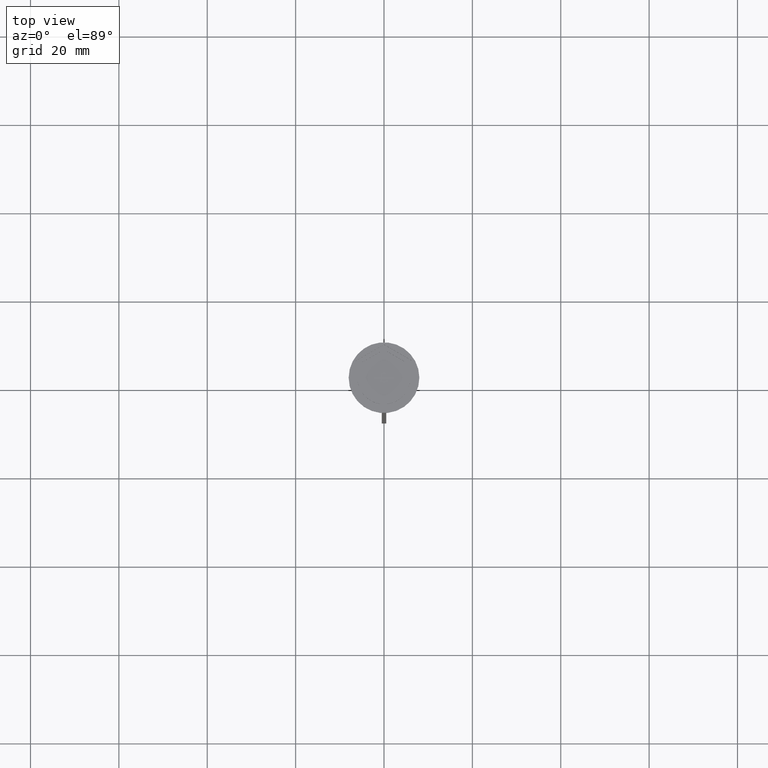
[diagram: clean part render]
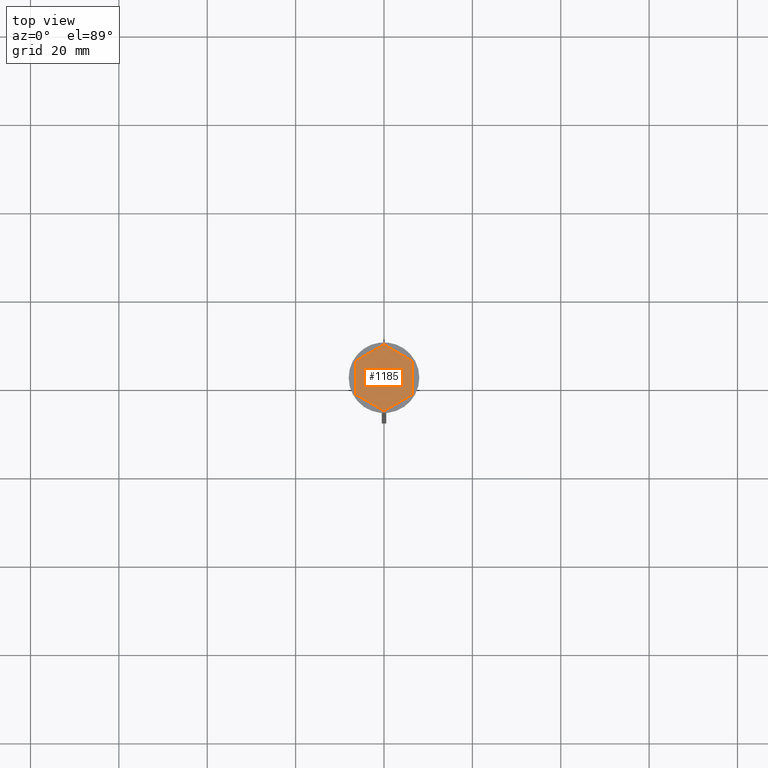
[diagram: same view with one face highlighted and labeled with its STEP entity id]
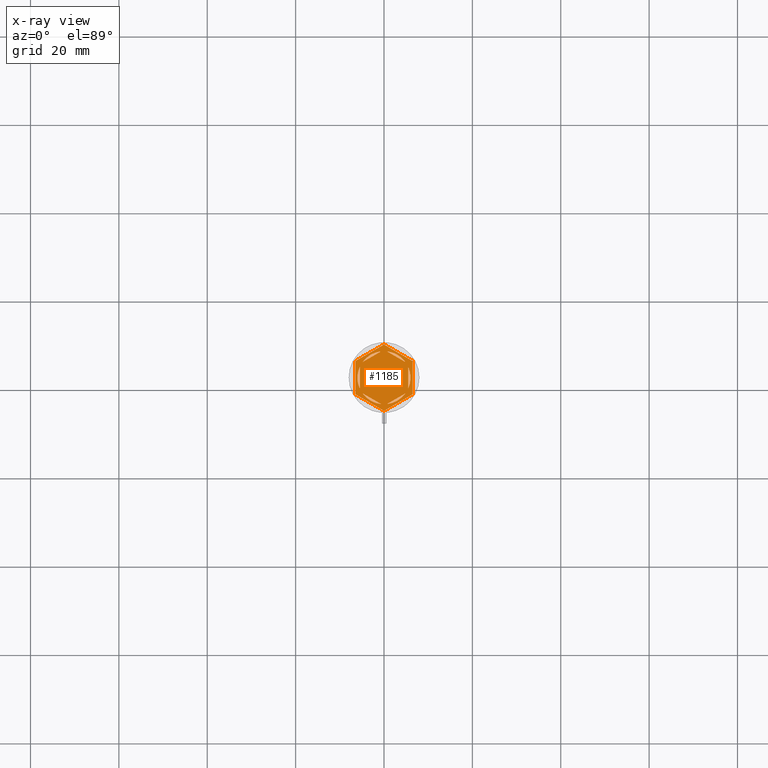
[diagram: x-ray of the same camera — body ghosted, the highlighted face saturated]
A machine part, top view. The second image highlights one B-rep face of the part: STEP entity #1185.
The next image is the same camera in x-ray: the body ghosted, the highlighted face saturated — about 0% of this face is hidden behind the body in this view.
In plain terms, the highlighted planar face has unit normal (0, 0, 1).
Its self-contained STEP definition (entity closure, byte-faithful):
#1 = VECTOR ( 'NONE', #839, 1000.000000000000114 ) ;
#19 = DIRECTION ( 'NONE',  ( 0.8660254037844387076, -0.4999999999999997224, 0.000000000000000000 ) ) ;
#32 = VECTOR ( 'NONE', #436, 1000.000000000000000 ) ;
#35 = LINE ( 'NONE', #2354, #1 ) ;
#39 = LINE ( 'NONE', #2085, #787 ) ;
#80 = CARTESIAN_POINT ( 'NONE',  ( 5.500000000000000000, -2.397915761656362665, -1.000000000000000888 ) ) ;
#83 = EDGE_CURVE ( 'NONE', #713, #2049, #89, .T. ) ;
#89 = LINE ( 'NONE', #869, #2003 ) ;
#115 = VERTEX_POINT ( 'NONE', #1660 ) ;
#126 = VERTEX_POINT ( 'NONE', #720 ) ;
#133 = CIRCLE ( 'NONE', #1177, 6.000000000000000888 ) ;
#160 = CARTESIAN_POINT ( 'NONE',  ( 6.500000000000000888, 3.752776749732567918, -1.000000000000000000 ) ) ;
#175 = VECTOR ( 'NONE', #446, 1000.000000000000114 ) ;
#183 = VERTEX_POINT ( 'NONE', #2029 ) ;
#230 = ORIENTED_EDGE ( 'NONE', *, *, #883, .F. ) ;
#236 = EDGE_CURVE ( 'NONE', #805, #2097, #874, .T. ) ;
#247 = CARTESIAN_POINT ( 'NONE',  ( -6.000000000000000888, 0.000000000000000000, -1.000000000000000000 ) ) ;
#250 = EDGE_CURVE ( 'NONE', #2097, #805, #930, .T. ) ;
#280 = DIRECTION ( 'NONE',  ( 1.000000000000000000, 0.000000000000000000, 0.000000000000000000 ) ) ;
#282 = VECTOR ( 'NONE', #2390, 1000.000000000000000 ) ;
#327 = AXIS2_PLACEMENT_3D ( 'NONE', #1127, #1360, #1705 ) ;
#350 = DIRECTION ( 'NONE',  ( 1.000000000000000000, 0.000000000000000000, 0.000000000000000000 ) ) ;
#358 = CARTESIAN_POINT ( 'NONE',  ( -5.500000000000001776, 2.397915761656359113, -1.000000000000000888 ) ) ;
#383 = DIRECTION ( 'NONE',  ( 1.000000000000000000, 0.000000000000000000, -0.000000000000000000 ) ) ;
#436 = DIRECTION ( 'NONE',  ( 0.000000000000000000, 1.000000000000000000, 0.000000000000000000 ) ) ;
#446 = DIRECTION ( 'NONE',  ( -0.8660254037844387076, -0.4999999999999997224, 0.000000000000000000 ) ) ;
#469 = CARTESIAN_POINT ( 'NONE',  ( 0.000000000000000000, 7.505553499465133171, -1.000000000000000000 ) ) ;
#497 = EDGE_CURVE ( 'NONE', #1172, #1855, #2355, .T. ) ;
#519 = FACE_OUTER_BOUND ( 'NONE', #962, .T. ) ;
#523 = CARTESIAN_POINT ( 'NONE',  ( 0.000000000000000000, 0.000000000000000000, -1.000000000000000000 ) ) ;
#529 = EDGE_CURVE ( 'NONE', #115, #126, #854, .T. ) ;
#533 = CARTESIAN_POINT ( 'NONE',  ( 4.826655965729517384, 3.564181839986237499, -1.000000000000000888 ) ) ;
#541 = ORIENTED_EDGE ( 'NONE', *, *, #529, .T. ) ;
#598 = ORIENTED_EDGE ( 'NONE', *, *, #1474, .F. ) ;
#619 = CARTESIAN_POINT ( 'NONE',  ( -0.6733440342704850590, -5.962097601642593503, -1.000000000000000888 ) ) ;
#626 = CARTESIAN_POINT ( 'NONE',  ( 4.826655965729520048, -3.564181839986233946, -1.000000000000000888 ) ) ;
#677 = DIRECTION ( 'NONE',  ( 1.000000000000000000, 0.000000000000000000, 0.000000000000000000 ) ) ;
#679 = ORIENTED_EDGE ( 'NONE', *, *, #1438, .T. ) ;
#687 = EDGE_LOOP ( 'NONE', ( #1276, #230 ) ) ;
#711 = AXIS2_PLACEMENT_3D ( 'NONE', #1494, #1908, #350 ) ;
#713 = VERTEX_POINT ( 'NONE', #978 ) ;
#720 = CARTESIAN_POINT ( 'NONE',  ( 6.499999999999999112, -3.752776749732567030, -1.000000000000000000 ) ) ;
#751 = EDGE_CURVE ( 'NONE', #183, #1726, #1988, .T. ) ;
#760 = DIRECTION ( 'NONE',  ( 0.000000000000000000, 0.000000000000000000, 1.000000000000000000 ) ) ;
#785 = EDGE_CURVE ( 'NONE', #969, #1089, #2475, .T. ) ;
#787 = VECTOR ( 'NONE', #2109, 1000.000000000000000 ) ;
#805 = VERTEX_POINT ( 'NONE', #2276 ) ;
#812 = CARTESIAN_POINT ( 'NONE',  ( -6.500000000000000888, 3.752776749732564365, -1.000000000000000000 ) ) ;
#825 = LINE ( 'NONE', #812, #282 ) ;
#839 = DIRECTION ( 'NONE',  ( 0.8660254037844387076, -0.4999999999999997224, 0.000000000000000000 ) ) ;
#854 = LINE ( 'NONE', #1398, #2205 ) ;
#869 = CARTESIAN_POINT ( 'NONE',  ( 4.336808689942017736E-16, 6.350852961085885262, -1.000000000000000888 ) ) ;
#872 = LINE ( 'NONE', #2211, #2235 ) ;
#874 = CIRCLE ( 'NONE', #2442, 6.000000000000000888 ) ;
#883 = EDGE_CURVE ( 'NONE', #1726, #183, #2163, .T. ) ;
#921 = DIRECTION ( 'NONE',  ( -2.731481088613015255E-16, -1.000000000000000000, 0.000000000000000000 ) ) ;
#930 = LINE ( 'NONE', #1081, #1592 ) ;
#950 = DIRECTION ( 'NONE',  ( 0.000000000000000000, 0.000000000000000000, 1.000000000000000000 ) ) ;
#962 = EDGE_LOOP ( 'NONE', ( #1849, #679, #1786, #2233, #541, #2388 ) ) ;
#965 = DIRECTION ( 'NONE',  ( -0.8660254037844387076, 0.4999999999999997224, 0.000000000000000000 ) ) ;
#969 = VERTEX_POINT ( 'NONE', #1044 ) ;
#975 = FACE_BOUND ( 'NONE', #1747, .T. ) ;
#978 = CARTESIAN_POINT ( 'NONE',  ( -4.826655965729520048, 3.564181839986233946, -1.000000000000000888 ) ) ;
#991 = AXIS2_PLACEMENT_3D ( 'NONE', #2489, #760, #1525 ) ;
#1040 = ORIENTED_EDGE ( 'NONE', *, *, #1600, .F. ) ;
#1044 = CARTESIAN_POINT ( 'NONE',  ( 6.500000000000000888, 3.752776749732567918, -1.000000000000000000 ) ) ;
#1045 = CARTESIAN_POINT ( 'NONE',  ( 0.6733440342704825055, 5.962097601642593503, -1.000000000000000888 ) ) ;
#1081 = CARTESIAN_POINT ( 'NONE',  ( -5.500000000000001776, -3.175426480542941743, -1.000000000000000888 ) ) ;
#1082 = ORIENTED_EDGE ( 'NONE', *, *, #1446, .F. ) ;
#1084 = ORIENTED_EDGE ( 'NONE', *, *, #236, .F. ) ;
#1089 = VERTEX_POINT ( 'NONE', #469 ) ;
#1124 = FACE_BOUND ( 'NONE', #687, .T. ) ;
#1127 = CARTESIAN_POINT ( 'NONE',  ( 0.000000000000000000, 0.000000000000000000, -1.000000000000000000 ) ) ;
#1138 = FACE_BOUND ( 'NONE', #1619, .T. ) ;
#1143 = ORIENTED_EDGE ( 'NONE', *, *, #2329, .F. ) ;
#1172 = VERTEX_POINT ( 'NONE', #1718 ) ;
#1173 = EDGE_LOOP ( 'NONE', ( #1957, #2019 ) ) ;
#1177 = AXIS2_PLACEMENT_3D ( 'NONE', #2334, #2125, #2325 ) ;
#1185 = ADVANCED_FACE ( 'NONE', ( #1936, #975, #1124, #1922, #1138, #2491, #519 ), #2459, .T. ) ;
#1192 = VECTOR ( 'NONE', #921, 1000.000000000000000 ) ;
#1217 = ORIENTED_EDGE ( 'NONE', *, *, #497, .F. ) ;
#1248 = VERTEX_POINT ( 'NONE', #247 ) ;
#1263 = ORIENTED_EDGE ( 'NONE', *, *, #1905, .F. ) ;
#1276 = ORIENTED_EDGE ( 'NONE', *, *, #751, .F. ) ;
#1313 = ORIENTED_EDGE ( 'NONE', *, *, #83, .F. ) ;
#1339 = VERTEX_POINT ( 'NONE', #1557 ) ;
#1356 = EDGE_CURVE ( 'NONE', #2030, #1890, #1585, .T. ) ;
#1360 = DIRECTION ( 'NONE',  ( 0.000000000000000000, 0.000000000000000000, 1.000000000000000000 ) ) ;
#1382 = CARTESIAN_POINT ( 'NONE',  ( -5.500000000000001776, 3.175426480542942187, -1.000000000000000888 ) ) ;
#1396 = AXIS2_PLACEMENT_3D ( 'NONE', #1909, #950, #383 ) ;
#1398 = CARTESIAN_POINT ( 'NONE',  ( -4.280685092543093048E-16, -7.505553499465134060, -1.000000000000000000 ) ) ;
#1409 = CARTESIAN_POINT ( 'NONE',  ( -0.6733440342704829495, 5.962097601642593503, -1.000000000000000888 ) ) ;
#1414 = VERTEX_POINT ( 'NONE', #80 ) ;
#1438 = EDGE_CURVE ( 'NONE', #1089, #2168, #872, .T. ) ;
#1446 = EDGE_CURVE ( 'NONE', #2049, #713, #1710, .T. ) ;
#1474 = EDGE_CURVE ( 'NONE', #1248, #1172, #2395, .T. ) ;
#1493 = VECTOR ( 'NONE', #965, 1000.000000000000114 ) ;
#1494 = CARTESIAN_POINT ( 'NONE',  ( 0.000000000000000000, 0.000000000000000000, -1.000000000000000000 ) ) ;
#1525 = DIRECTION ( 'NONE',  ( 1.000000000000000000, 0.000000000000000000, 0.000000000000000000 ) ) ;
#1557 = CARTESIAN_POINT ( 'NONE',  ( -6.500000000000000888, -3.752776749732568806, -1.000000000000000000 ) ) ;
#1575 = ORIENTED_EDGE ( 'NONE', *, *, #250, .F. ) ;
#1585 = LINE ( 'NONE', #2335, #1874 ) ;
#1592 = VECTOR ( 'NONE', #1848, 999.9999999999998863 ) ;
#1600 = EDGE_CURVE ( 'NONE', #1709, #1414, #1689, .T. ) ;
#1611 = DIRECTION ( 'NONE',  ( 0.000000000000000000, 0.000000000000000000, 1.000000000000000000 ) ) ;
#1619 = EDGE_LOOP ( 'NONE', ( #1263, #1217, #598 ) ) ;
#1620 = DIRECTION ( 'NONE',  ( 0.8660254037844385966, 0.5000000000000001110, -0.000000000000000000 ) ) ;
#1660 = CARTESIAN_POINT ( 'NONE',  ( -4.280685092543093048E-16, -7.505553499465134060, -1.000000000000000000 ) ) ;
#1664 = CARTESIAN_POINT ( 'NONE',  ( 0.000000000000000000, 0.000000000000000000, -1.000000000000000000 ) ) ;
#1689 = LINE ( 'NONE', #1882, #1192 ) ;
#1705 = DIRECTION ( 'NONE',  ( 1.000000000000000000, 0.000000000000000000, 0.000000000000000000 ) ) ;
#1709 = VERTEX_POINT ( 'NONE', #1930 ) ;
#1710 = CIRCLE ( 'NONE', #2156, 6.000000000000000888 ) ;
#1718 = CARTESIAN_POINT ( 'NONE',  ( -5.500000000000001776, -2.397915761656359113, -1.000000000000000888 ) ) ;
#1726 = VERTEX_POINT ( 'NONE', #626 ) ;
#1747 = EDGE_LOOP ( 'NONE', ( #1143, #1040 ) ) ;
#1786 = ORIENTED_EDGE ( 'NONE', *, *, #2022, .T. ) ;
#1797 = CIRCLE ( 'NONE', #711, 6.000000000000000888 ) ;
#1848 = DIRECTION ( 'NONE',  ( -0.8660254037844385966, 0.5000000000000002220, 0.000000000000000000 ) ) ;
#1849 = ORIENTED_EDGE ( 'NONE', *, *, #785, .T. ) ;
#1855 = VERTEX_POINT ( 'NONE', #358 ) ;
#1868 = EDGE_CURVE ( 'NONE', #126, #969, #39, .T. ) ;
#1874 = VECTOR ( 'NONE', #19, 1000.000000000000114 ) ;
#1882 = CARTESIAN_POINT ( 'NONE',  ( 5.500000000000000000, -3.175426480542943519, -1.000000000000000888 ) ) ;
#1890 = VERTEX_POINT ( 'NONE', #533 ) ;
#1905 = EDGE_CURVE ( 'NONE', #1855, #1248, #1797, .T. ) ;
#1908 = DIRECTION ( 'NONE',  ( 0.000000000000000000, 0.000000000000000000, 1.000000000000000000 ) ) ;
#1909 = CARTESIAN_POINT ( 'NONE',  ( 0.000000000000000000, 0.000000000000000000, -1.000000000000000000 ) ) ;
#1922 = FACE_BOUND ( 'NONE', #2480, .T. ) ;
#1929 = EDGE_CURVE ( 'NONE', #1890, #2030, #2074, .T. ) ;
#1930 = CARTESIAN_POINT ( 'NONE',  ( 5.500000000000001776, 2.397915761656360001, -1.000000000000000888 ) ) ;
#1936 = FACE_BOUND ( 'NONE', #1173, .T. ) ;
#1957 = ORIENTED_EDGE ( 'NONE', *, *, #1929, .F. ) ;
#1988 = CIRCLE ( 'NONE', #327, 6.000000000000000888 ) ;
#2003 = VECTOR ( 'NONE', #1620, 1000.000000000000000 ) ;
#2019 = ORIENTED_EDGE ( 'NONE', *, *, #1356, .F. ) ;
#2022 = EDGE_CURVE ( 'NONE', #2168, #1339, #825, .T. ) ;
#2029 = CARTESIAN_POINT ( 'NONE',  ( 0.6733440342704786197, -5.962097601642593503, -1.000000000000000888 ) ) ;
#2030 = VERTEX_POINT ( 'NONE', #1045 ) ;
#2049 = VERTEX_POINT ( 'NONE', #1409 ) ;
#2056 = DIRECTION ( 'NONE',  ( -0.8660254037844385966, -0.5000000000000001110, 0.000000000000000000 ) ) ;
#2071 = EDGE_LOOP ( 'NONE', ( #1082, #1313 ) ) ;
#2074 = CIRCLE ( 'NONE', #991, 6.000000000000000888 ) ;
#2075 = DIRECTION ( 'NONE',  ( 0.000000000000000000, 0.000000000000000000, 1.000000000000000000 ) ) ;
#2085 = CARTESIAN_POINT ( 'NONE',  ( 6.499999999999999112, -3.752776749732567030, -1.000000000000000000 ) ) ;
#2091 = EDGE_CURVE ( 'NONE', #1339, #115, #35, .T. ) ;
#2097 = VERTEX_POINT ( 'NONE', #619 ) ;
#2109 = DIRECTION ( 'NONE',  ( 2.311253228826399154E-16, 1.000000000000000000, 0.000000000000000000 ) ) ;
#2125 = DIRECTION ( 'NONE',  ( 0.000000000000000000, 0.000000000000000000, 1.000000000000000000 ) ) ;
#2150 = CARTESIAN_POINT ( 'NONE',  ( -1.734723475976807094E-15, -6.350852961085884374, -1.000000000000000888 ) ) ;
#2156 = AXIS2_PLACEMENT_3D ( 'NONE', #1664, #1611, #280 ) ;
#2163 = LINE ( 'NONE', #2150, #175 ) ;
#2167 = DIRECTION ( 'NONE',  ( 0.8660254037844385966, 0.5000000000000001110, 0.000000000000000000 ) ) ;
#2168 = VERTEX_POINT ( 'NONE', #2252 ) ;
#2205 = VECTOR ( 'NONE', #2167, 1000.000000000000114 ) ;
#2211 = CARTESIAN_POINT ( 'NONE',  ( 0.000000000000000000, 7.505553499465133171, -1.000000000000000000 ) ) ;
#2227 = DIRECTION ( 'NONE',  ( 1.000000000000000000, 0.000000000000000000, 0.000000000000000000 ) ) ;
#2233 = ORIENTED_EDGE ( 'NONE', *, *, #2091, .T. ) ;
#2235 = VECTOR ( 'NONE', #2056, 1000.000000000000000 ) ;
#2252 = CARTESIAN_POINT ( 'NONE',  ( -6.500000000000000888, 3.752776749732564365, -1.000000000000000000 ) ) ;
#2276 = CARTESIAN_POINT ( 'NONE',  ( -4.826655965729520048, -3.564181839986235723, -1.000000000000000888 ) ) ;
#2325 = DIRECTION ( 'NONE',  ( 1.000000000000000000, 0.000000000000000000, 0.000000000000000000 ) ) ;
#2329 = EDGE_CURVE ( 'NONE', #1414, #1709, #133, .T. ) ;
#2334 = CARTESIAN_POINT ( 'NONE',  ( 0.000000000000000000, 0.000000000000000000, -1.000000000000000000 ) ) ;
#2335 = CARTESIAN_POINT ( 'NONE',  ( 5.500000000000001776, 3.175426480542944407, -1.000000000000000888 ) ) ;
#2354 = CARTESIAN_POINT ( 'NONE',  ( -6.500000000000000888, -3.752776749732568806, -1.000000000000000000 ) ) ;
#2355 = LINE ( 'NONE', #1382, #32 ) ;
#2360 = AXIS2_PLACEMENT_3D ( 'NONE', #2408, #2386, #677 ) ;
#2386 = DIRECTION ( 'NONE',  ( 0.000000000000000000, 0.000000000000000000, 1.000000000000000000 ) ) ;
#2388 = ORIENTED_EDGE ( 'NONE', *, *, #1868, .T. ) ;
#2390 = DIRECTION ( 'NONE',  ( 0.000000000000000000, -1.000000000000000000, 0.000000000000000000 ) ) ;
#2395 = CIRCLE ( 'NONE', #2360, 6.000000000000000888 ) ;
#2408 = CARTESIAN_POINT ( 'NONE',  ( 0.000000000000000000, 0.000000000000000000, -1.000000000000000000 ) ) ;
#2442 = AXIS2_PLACEMENT_3D ( 'NONE', #523, #2075, #2227 ) ;
#2459 = PLANE ( 'NONE',  #1396 ) ;
#2475 = LINE ( 'NONE', #160, #1493 ) ;
#2480 = EDGE_LOOP ( 'NONE', ( #1084, #1575 ) ) ;
#2489 = CARTESIAN_POINT ( 'NONE',  ( 0.000000000000000000, 0.000000000000000000, -1.000000000000000000 ) ) ;
#2491 = FACE_BOUND ( 'NONE', #2071, .T. ) ;